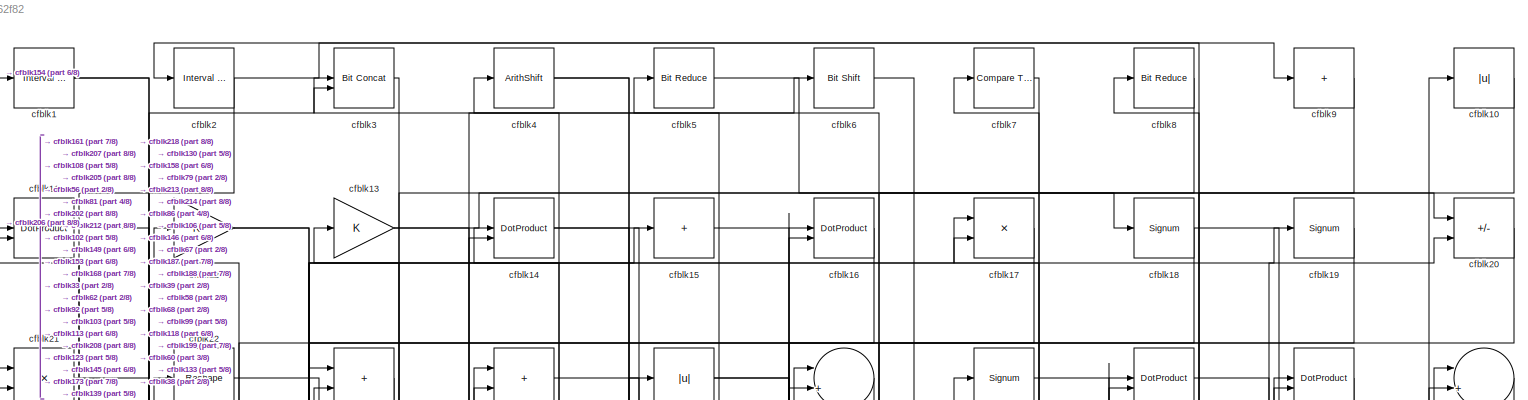
[diagram: root canvas - part 1/8, full width, top band]
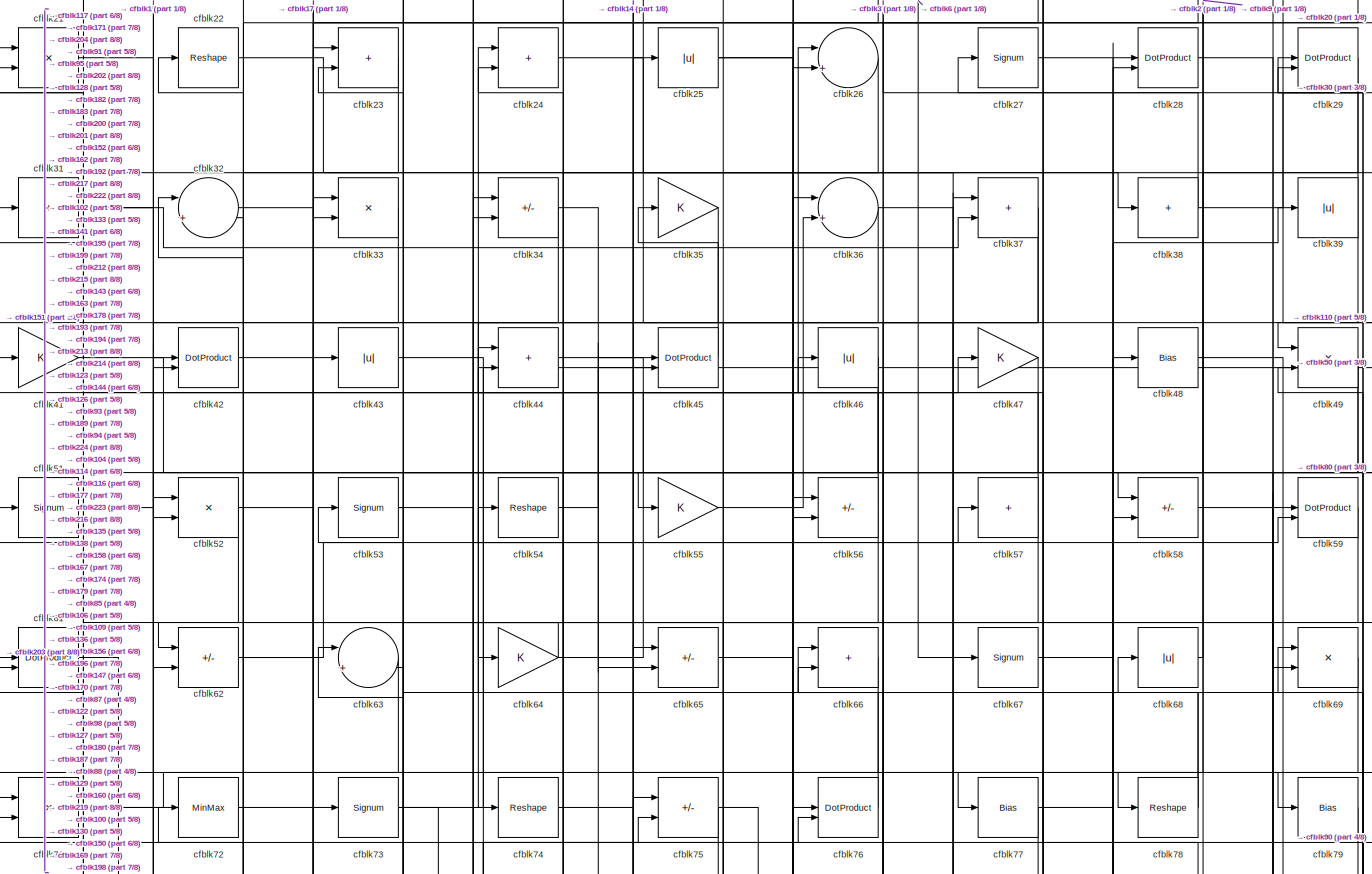
[diagram: root canvas - part 2/8, full width, top band]
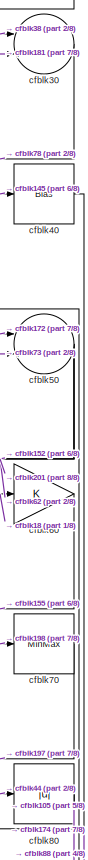
[diagram: root canvas - part 3/8, top right region]
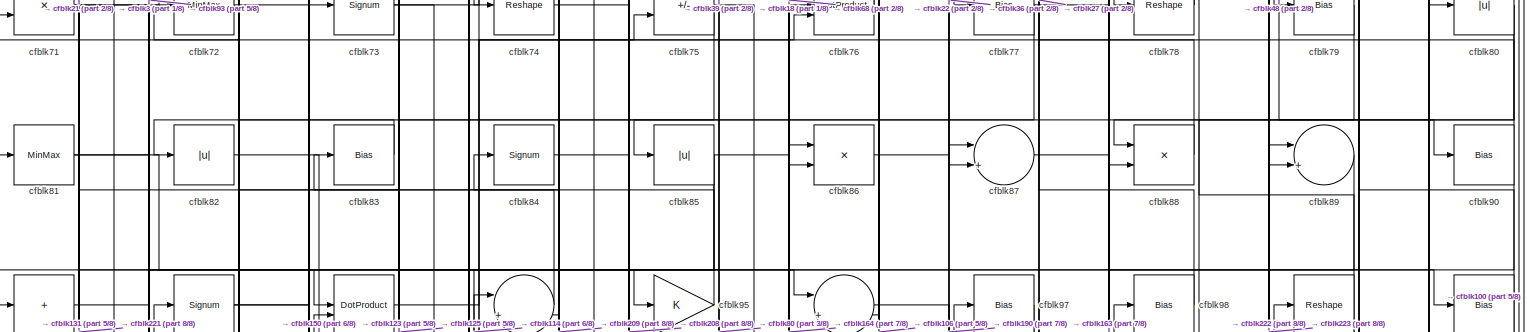
[diagram: root canvas - part 4/8, full width, middle band]
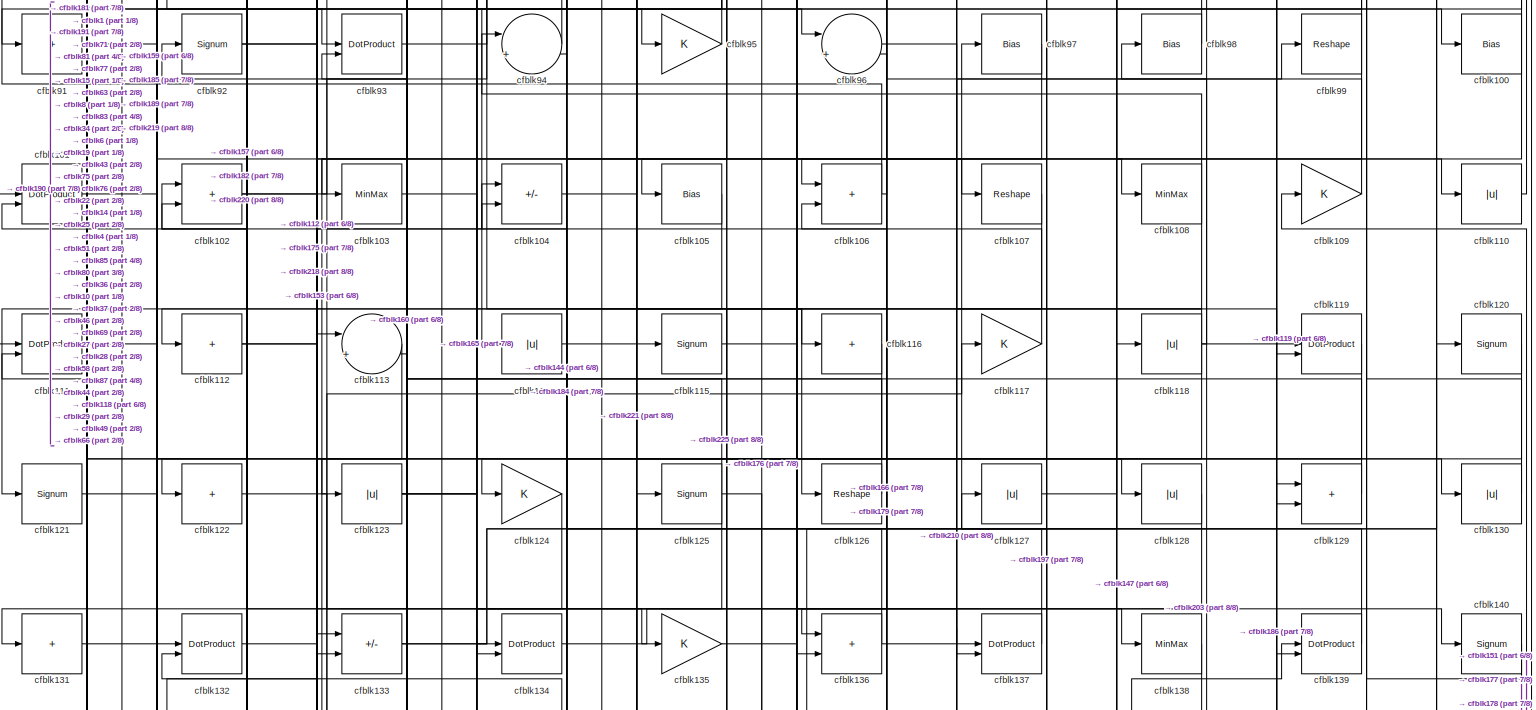
[diagram: root canvas - part 5/8, full width, middle band]
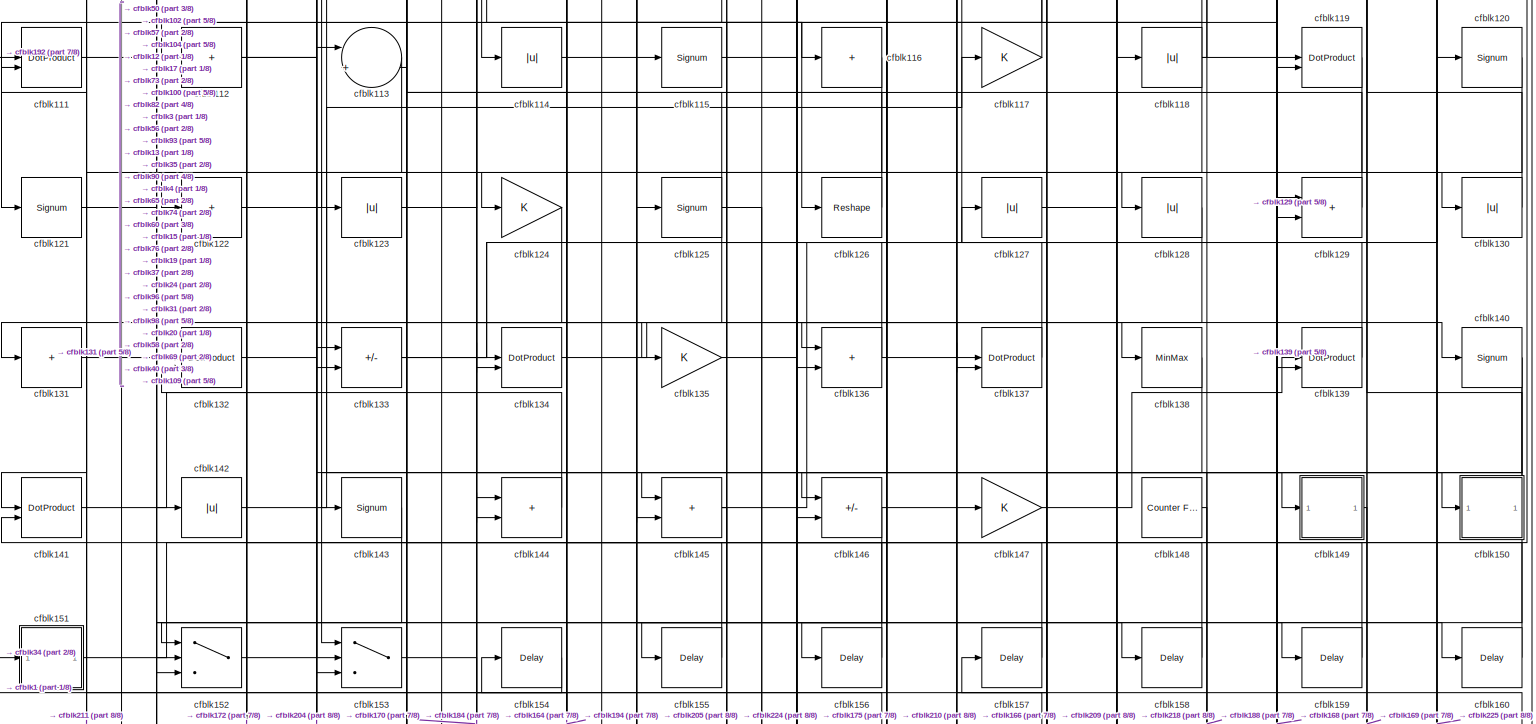
[diagram: root canvas - part 6/8, full width, middle band]
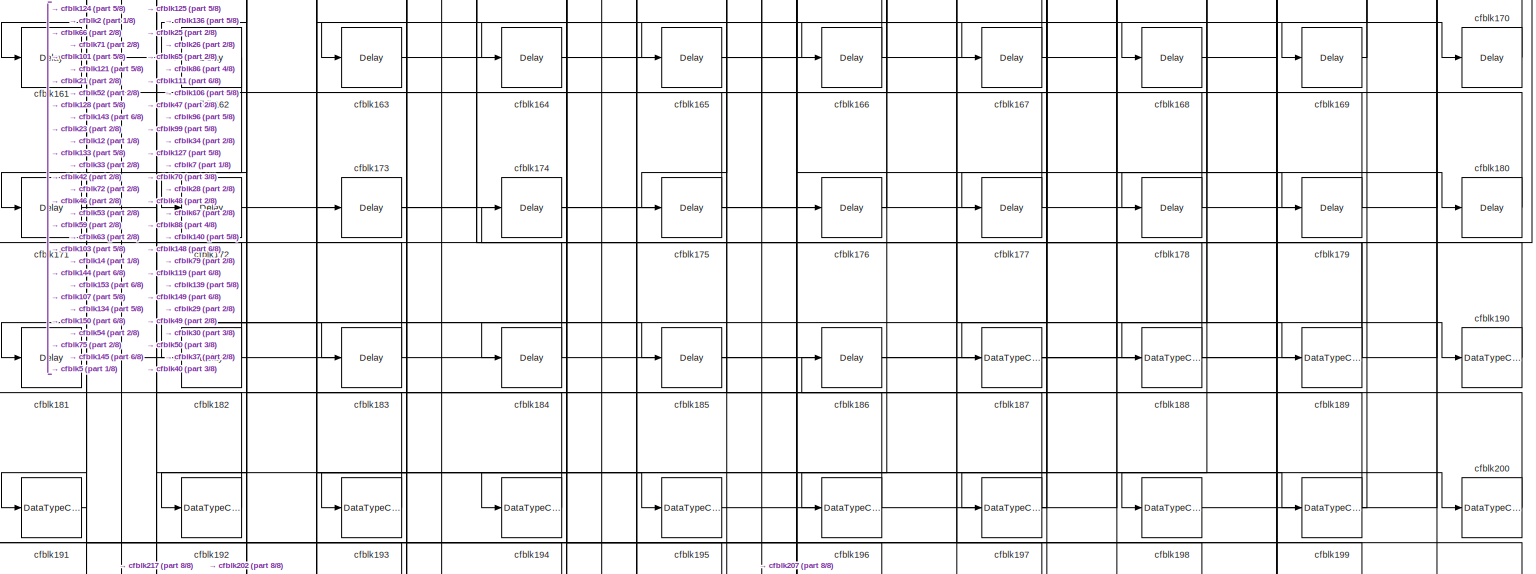
[diagram: root canvas - part 7/8, full width, bottom band]
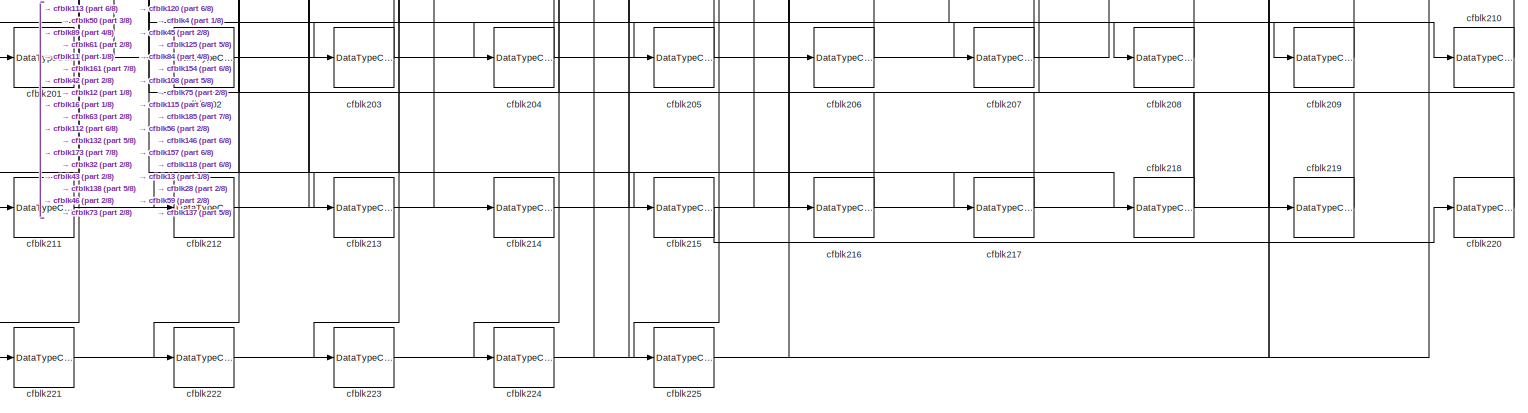
[diagram: root canvas - part 8/8, full width, bottom band]
MODEL slx_02483b762f82
KIND model
CONFIG AbsTol = auto
CONFIG EnableMultiTasking = off
CONFIG FixedStep = auto
CONFIG MaxStep = auto
CONFIG MinStep = auto
CONFIG RelTol = 1e-3
CONFIG SampleTimeConstraint = Unconstrained
CONFIG SolverName = VariableStepAuto
CONFIG StartTime = 0.0
CONFIG StopTime = 10.0
BLOCK [Reference] cfblk1  REF=hdlsllib/Logic and Bit
Operations/Interval Test
  SourceBlock = hdlsllib/Logic and Bit\nOperations/Interval Test
  SourceType = Interval Test
BLOCK [Abs] cfblk10
  SaturateOnIntegerOverflow = off
BLOCK [Bias] cfblk100
  Bias = 0.0
  SaturateOnIntegerOverflow = off
BLOCK [DotProduct] cfblk101
  OutDataTypeStr = Inherit: Inherit via internal rule
BLOCK [Sum] cfblk102
  IconShape = rectangular
BLOCK [MinMax] cfblk103
BLOCK [Sum] cfblk104
  IconShape = rectangular
  Inputs = +-
BLOCK [Bias] cfblk105
  Bias = 0.0
  SaturateOnIntegerOverflow = off
BLOCK [Sum] cfblk106
  IconShape = rectangular
BLOCK [Reshape] cfblk107
BLOCK [MinMax] cfblk108
BLOCK [Gain] cfblk109
BLOCK [DotProduct] cfblk11
  OutDataTypeStr = Inherit: Inherit via internal rule
BLOCK [Abs] cfblk110
  SaturateOnIntegerOverflow = off
BLOCK [DotProduct] cfblk111
  OutDataTypeStr = Inherit: Inherit via internal rule
BLOCK [Sum] cfblk112
  IconShape = rectangular
  Inputs = +
BLOCK [Sum] cfblk113
  Inputs = |++
BLOCK [Abs] cfblk114
  SaturateOnIntegerOverflow = off
BLOCK [Signum] cfblk115
BLOCK [Sum] cfblk116
  IconShape = rectangular
  Inputs = +
BLOCK [Gain] cfblk117
BLOCK [Abs] cfblk118
  SaturateOnIntegerOverflow = off
BLOCK [DotProduct] cfblk119
  OutDataTypeStr = Inherit: Inherit via internal rule
BLOCK [Gain] cfblk12
BLOCK [Signum] cfblk120
BLOCK [Signum] cfblk121
BLOCK [Sum] cfblk122
  IconShape = rectangular
  Inputs = +
BLOCK [Abs] cfblk123
  SaturateOnIntegerOverflow = off
BLOCK [Gain] cfblk124
BLOCK [Signum] cfblk125
BLOCK [Reshape] cfblk126
BLOCK [Abs] cfblk127
  SaturateOnIntegerOverflow = off
BLOCK [Abs] cfblk128
  SaturateOnIntegerOverflow = off
BLOCK [Sum] cfblk129
  IconShape = rectangular
BLOCK [Gain] cfblk13
BLOCK [Abs] cfblk130
  SaturateOnIntegerOverflow = off
BLOCK [Sum] cfblk131
  IconShape = rectangular
  Inputs = +
BLOCK [DotProduct] cfblk132
  OutDataTypeStr = Inherit: Inherit via internal rule
BLOCK [Sum] cfblk133
  IconShape = rectangular
  Inputs = +-
BLOCK [DotProduct] cfblk134
  OutDataTypeStr = Inherit: Inherit via internal rule
BLOCK [Gain] cfblk135
BLOCK [Sum] cfblk136
  IconShape = rectangular
BLOCK [DotProduct] cfblk137
  OutDataTypeStr = Inherit: Inherit via internal rule
BLOCK [MinMax] cfblk138
BLOCK [DotProduct] cfblk139
  OutDataTypeStr = Inherit: Inherit via internal rule
BLOCK [DotProduct] cfblk14
  OutDataTypeStr = Inherit: Inherit via internal rule
BLOCK [Signum] cfblk140
BLOCK [DotProduct] cfblk141
  OutDataTypeStr = Inherit: Inherit via internal rule
BLOCK [Abs] cfblk142
  SaturateOnIntegerOverflow = off
BLOCK [Signum] cfblk143
BLOCK [Sum] cfblk144
  IconShape = rectangular
BLOCK [Sum] cfblk145
  IconShape = rectangular
BLOCK [Sum] cfblk146
  IconShape = rectangular
  Inputs = +-
BLOCK [Gain] cfblk147
BLOCK [Reference] cfblk148  REF=hdlsllib/Sources/Counter
Free-Running
  SourceBlock = hdlsllib/Sources/Counter\nFree-Running
  SourceType = Counter Free-Running
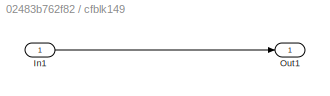
BLOCK [SubSystem] cfblk149
  LibrarySourceBlock = hdlsllib/Ports &\nSubsystems/Subsystem
BLOCK [Inport] cfblk149/In1
BLOCK [Outport] cfblk149/Out1
BLOCK [Sum] cfblk15
  IconShape = rectangular
  Inputs = +
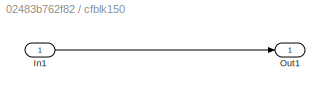
BLOCK [SubSystem] cfblk150
  LibrarySourceBlock = hdlsllib/Ports &\nSubsystems/Subsystem
BLOCK [Inport] cfblk150/In1
BLOCK [Outport] cfblk150/Out1
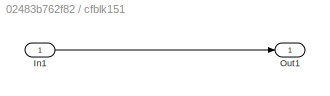
BLOCK [SubSystem] cfblk151
  LibrarySourceBlock = hdlsllib/Ports &\nSubsystems/Subsystem
BLOCK [Inport] cfblk151/In1
BLOCK [Outport] cfblk151/Out1
BLOCK [Switch] cfblk152
  InputSameDT = off
  SaturateOnIntegerOverflow = off
BLOCK [Switch] cfblk153
  InputSameDT = off
  SaturateOnIntegerOverflow = off
BLOCK [Delay] cfblk154
  InputPortMap = u0
  SampleTime = 1
BLOCK [Delay] cfblk155
  InputPortMap = u0
  SampleTime = 1
BLOCK [Delay] cfblk156
  InputPortMap = u0
  SampleTime = 1
BLOCK [Delay] cfblk157
  InputPortMap = u0
  SampleTime = 1
BLOCK [Delay] cfblk158
  InputPortMap = u0
  SampleTime = 1
BLOCK [Delay] cfblk159
  InputPortMap = u0
  SampleTime = 1
BLOCK [DotProduct] cfblk16
  OutDataTypeStr = Inherit: Inherit via internal rule
BLOCK [Delay] cfblk160
  InputPortMap = u0
  SampleTime = 1
BLOCK [Delay] cfblk161
  InputPortMap = u0
  SampleTime = 1
BLOCK [Delay] cfblk162
  InputPortMap = u0
  SampleTime = 1
BLOCK [Delay] cfblk163
  InputPortMap = u0
  SampleTime = 1
BLOCK [Delay] cfblk164
  InputPortMap = u0
  SampleTime = 1
BLOCK [Delay] cfblk165
  InputPortMap = u0
  SampleTime = 1
BLOCK [Delay] cfblk166
  InputPortMap = u0
  SampleTime = 1
BLOCK [Delay] cfblk167
  InputPortMap = u0
  SampleTime = 1
BLOCK [Delay] cfblk168
  InputPortMap = u0
  SampleTime = 1
BLOCK [Delay] cfblk169
  InputPortMap = u0
  SampleTime = 1
BLOCK [Product] cfblk17
  Inputs = */
  RndMeth = Zero
  SaturateOnIntegerOverflow = on
BLOCK [Delay] cfblk170
  InputPortMap = u0
  SampleTime = 1
BLOCK [Delay] cfblk171
  InputPortMap = u0
  SampleTime = 1
BLOCK [Delay] cfblk172
  InputPortMap = u0
  SampleTime = 1
BLOCK [Delay] cfblk173
  InputPortMap = u0
  SampleTime = 1
BLOCK [Delay] cfblk174
  InputPortMap = u0
  SampleTime = 1
BLOCK [Delay] cfblk175
  InputPortMap = u0
  SampleTime = 1
BLOCK [Delay] cfblk176
  InputPortMap = u0
  SampleTime = 1
BLOCK [Delay] cfblk177
  InputPortMap = u0
  SampleTime = 1
BLOCK [Delay] cfblk178
  InputPortMap = u0
  SampleTime = 1
BLOCK [Delay] cfblk179
  InputPortMap = u0
  SampleTime = 1
BLOCK [Signum] cfblk18
BLOCK [Delay] cfblk180
  InputPortMap = u0
  SampleTime = 1
BLOCK [Delay] cfblk181
  InputPortMap = u0
  SampleTime = 1
BLOCK [Delay] cfblk182
  InputPortMap = u0
  SampleTime = 1
BLOCK [Delay] cfblk183
  InputPortMap = u0
  SampleTime = 1
BLOCK [Delay] cfblk184
  InputPortMap = u0
  SampleTime = 1
BLOCK [Delay] cfblk185
  InputPortMap = u0
  SampleTime = 1
BLOCK [Delay] cfblk186
  InputPortMap = u0
  SampleTime = 1
BLOCK [DataTypeConversion] cfblk187
  OutDataTypeStr = uint8
  RndMeth = Floor
  SaturateOnIntegerOverflow = off
BLOCK [DataTypeConversion] cfblk188
  OutDataTypeStr = uint8
  RndMeth = Floor
  SaturateOnIntegerOverflow = off
BLOCK [DataTypeConversion] cfblk189
  RndMeth = Floor
  SaturateOnIntegerOverflow = off
BLOCK [Signum] cfblk19
BLOCK [DataTypeConversion] cfblk190
  OutDataTypeStr = uint8
  RndMeth = Floor
  SaturateOnIntegerOverflow = off
BLOCK [DataTypeConversion] cfblk191
  OutDataTypeStr = uint8
  RndMeth = Floor
  SaturateOnIntegerOverflow = off
BLOCK [DataTypeConversion] cfblk192
  OutDataTypeStr = uint8
  RndMeth = Floor
  SaturateOnIntegerOverflow = off
BLOCK [DataTypeConversion] cfblk193
  OutDataTypeStr = uint8
  RndMeth = Floor
  SaturateOnIntegerOverflow = off
BLOCK [DataTypeConversion] cfblk194
  OutDataTypeStr = uint8
  RndMeth = Floor
  SaturateOnIntegerOverflow = off
BLOCK [DataTypeConversion] cfblk195
  OutDataTypeStr = uint8
  RndMeth = Floor
  SaturateOnIntegerOverflow = off
BLOCK [DataTypeConversion] cfblk196
  OutDataTypeStr = uint8
  RndMeth = Floor
  SaturateOnIntegerOverflow = off
BLOCK [DataTypeConversion] cfblk197
  RndMeth = Floor
  SaturateOnIntegerOverflow = off
BLOCK [DataTypeConversion] cfblk198
  OutDataTypeStr = uint8
  RndMeth = Floor
  SaturateOnIntegerOverflow = off
BLOCK [DataTypeConversion] cfblk199
  RndMeth = Floor
  SaturateOnIntegerOverflow = off
BLOCK [Reference] cfblk2  REF=hdlsllib/Logic and Bit
Operations/Interval Test
  SourceBlock = hdlsllib/Logic and Bit\nOperations/Interval Test
  SourceType = Interval Test
BLOCK [Sum] cfblk20
  IconShape = rectangular
  Inputs = +-
BLOCK [DataTypeConversion] cfblk200
  OutDataTypeStr = uint8
  RndMeth = Floor
  SaturateOnIntegerOverflow = off
BLOCK [DataTypeConversion] cfblk201
  OutDataTypeStr = uint8
  RndMeth = Floor
  SaturateOnIntegerOverflow = off
BLOCK [DataTypeConversion] cfblk202
  RndMeth = Floor
  SaturateOnIntegerOverflow = off
BLOCK [DataTypeConversion] cfblk203
  OutDataTypeStr = uint8
  RndMeth = Floor
  SaturateOnIntegerOverflow = off
BLOCK [DataTypeConversion] cfblk204
  OutDataTypeStr = uint8
  RndMeth = Floor
  SaturateOnIntegerOverflow = off
BLOCK [DataTypeConversion] cfblk205
  RndMeth = Floor
  SaturateOnIntegerOverflow = off
BLOCK [DataTypeConversion] cfblk206
  OutDataTypeStr = uint8
  RndMeth = Floor
  SaturateOnIntegerOverflow = off
BLOCK [DataTypeConversion] cfblk207
  OutDataTypeStr = uint8
  RndMeth = Floor
  SaturateOnIntegerOverflow = off
BLOCK [DataTypeConversion] cfblk208
  OutDataTypeStr = uint8
  RndMeth = Floor
  SaturateOnIntegerOverflow = off
BLOCK [DataTypeConversion] cfblk209
  OutDataTypeStr = uint8
  RndMeth = Floor
  SaturateOnIntegerOverflow = off
BLOCK [Product] cfblk21
  Inputs = */
  RndMeth = Zero
  SaturateOnIntegerOverflow = on
BLOCK [DataTypeConversion] cfblk210
  OutDataTypeStr = uint8
  RndMeth = Floor
  SaturateOnIntegerOverflow = off
BLOCK [DataTypeConversion] cfblk211
  OutDataTypeStr = uint8
  RndMeth = Floor
  SaturateOnIntegerOverflow = off
BLOCK [DataTypeConversion] cfblk212
  RndMeth = Floor
  SaturateOnIntegerOverflow = off
BLOCK [DataTypeConversion] cfblk213
  OutDataTypeStr = uint8
  RndMeth = Floor
  SaturateOnIntegerOverflow = off
BLOCK [DataTypeConversion] cfblk214
  OutDataTypeStr = uint8
  RndMeth = Floor
  SaturateOnIntegerOverflow = off
BLOCK [DataTypeConversion] cfblk215
  OutDataTypeStr = uint8
  RndMeth = Floor
  SaturateOnIntegerOverflow = off
BLOCK [DataTypeConversion] cfblk216
  OutDataTypeStr = uint8
  RndMeth = Floor
  SaturateOnIntegerOverflow = off
BLOCK [DataTypeConversion] cfblk217
  OutDataTypeStr = uint8
  RndMeth = Floor
  SaturateOnIntegerOverflow = off
BLOCK [DataTypeConversion] cfblk218
  RndMeth = Floor
  SaturateOnIntegerOverflow = off
BLOCK [DataTypeConversion] cfblk219
  OutDataTypeStr = uint8
  RndMeth = Floor
  SaturateOnIntegerOverflow = off
BLOCK [Reshape] cfblk22
BLOCK [DataTypeConversion] cfblk220
  OutDataTypeStr = uint8
  RndMeth = Floor
  SaturateOnIntegerOverflow = off
BLOCK [DataTypeConversion] cfblk221
  OutDataTypeStr = uint8
  RndMeth = Floor
  SaturateOnIntegerOverflow = off
BLOCK [DataTypeConversion] cfblk222
  OutDataTypeStr = uint8
  RndMeth = Floor
  SaturateOnIntegerOverflow = off
BLOCK [DataTypeConversion] cfblk223
  OutDataTypeStr = uint8
  RndMeth = Floor
  SaturateOnIntegerOverflow = off
BLOCK [DataTypeConversion] cfblk224
  RndMeth = Floor
  SaturateOnIntegerOverflow = off
BLOCK [DataTypeConversion] cfblk225
  OutDataTypeStr = uint8
  RndMeth = Floor
  SaturateOnIntegerOverflow = off
BLOCK [Sum] cfblk23
  IconShape = rectangular
BLOCK [Sum] cfblk24
  IconShape = rectangular
BLOCK [Abs] cfblk25
  SaturateOnIntegerOverflow = off
BLOCK [Sum] cfblk26
  Inputs = |++
BLOCK [Signum] cfblk27
BLOCK [DotProduct] cfblk28
  OutDataTypeStr = Inherit: Inherit via internal rule
BLOCK [DotProduct] cfblk29
  OutDataTypeStr = Inherit: Inherit via internal rule
BLOCK [Reference] cfblk3  REF=hdlsllib/Logic and Bit
Operations/Bit Concat
  SourceBlock = hdlsllib/Logic and Bit\nOperations/Bit Concat
  SourceType = Bit Concat
BLOCK [Sum] cfblk30
  Inputs = |++
BLOCK [Sum] cfblk31
  IconShape = rectangular
  Inputs = +
BLOCK [Sum] cfblk32
  Inputs = |++
BLOCK [Product] cfblk33
  Inputs = */
  RndMeth = Zero
  SaturateOnIntegerOverflow = on
BLOCK [Sum] cfblk34
  IconShape = rectangular
  Inputs = +-
BLOCK [Gain] cfblk35
BLOCK [Sum] cfblk36
  Inputs = |++
BLOCK [Sum] cfblk37
  IconShape = rectangular
BLOCK [Sum] cfblk38
  IconShape = rectangular
  Inputs = +
BLOCK [Abs] cfblk39
  SaturateOnIntegerOverflow = off
BLOCK [ArithShift] cfblk4
  BitShiftNumber = 8
  InputPortMap = u0
BLOCK [Bias] cfblk40
  Bias = 0.0
  SaturateOnIntegerOverflow = off
BLOCK [Gain] cfblk41
BLOCK [DotProduct] cfblk42
  OutDataTypeStr = Inherit: Inherit via internal rule
BLOCK [Abs] cfblk43
  SaturateOnIntegerOverflow = off
BLOCK [Sum] cfblk44
  IconShape = rectangular
BLOCK [DotProduct] cfblk45
  OutDataTypeStr = Inherit: Inherit via internal rule
BLOCK [Abs] cfblk46
  SaturateOnIntegerOverflow = off
BLOCK [Gain] cfblk47
BLOCK [Bias] cfblk48
  Bias = 0.0
  SaturateOnIntegerOverflow = off
BLOCK [Product] cfblk49
  Inputs = */
  RndMeth = Zero
  SaturateOnIntegerOverflow = on
BLOCK [Reference] cfblk5  REF=hdlsllib/Logic and Bit
Operations/Bit Reduce
  SourceBlock = hdlsllib/Logic and Bit\nOperations/Bit Reduce
  SourceType = Bit Reduce
BLOCK [Sum] cfblk50
  Inputs = |++
BLOCK [Signum] cfblk51
BLOCK [Product] cfblk52
  Inputs = */
  RndMeth = Zero
  SaturateOnIntegerOverflow = on
BLOCK [Signum] cfblk53
BLOCK [Reshape] cfblk54
BLOCK [Gain] cfblk55
BLOCK [Sum] cfblk56
  IconShape = rectangular
  Inputs = +-
BLOCK [Sum] cfblk57
  IconShape = rectangular
  Inputs = +
BLOCK [Sum] cfblk58
  IconShape = rectangular
  Inputs = +-
BLOCK [DotProduct] cfblk59
  OutDataTypeStr = Inherit: Inherit via internal rule
BLOCK [Reference] cfblk6  REF=hdlsllib/Logic and Bit
Operations/Bit Shift
  SourceBlock = hdlsllib/Logic and Bit\nOperations/Bit Shift
  SourceType = Bit Shift
BLOCK [Gain] cfblk60
BLOCK [DotProduct] cfblk61
  OutDataTypeStr = Inherit: Inherit via internal rule
BLOCK [Sum] cfblk62
  IconShape = rectangular
  Inputs = +-
BLOCK [Sum] cfblk63
  Inputs = |++
BLOCK [Gain] cfblk64
BLOCK [Sum] cfblk65
  IconShape = rectangular
  Inputs = +-
BLOCK [Sum] cfblk66
  IconShape = rectangular
BLOCK [Signum] cfblk67
BLOCK [Abs] cfblk68
  SaturateOnIntegerOverflow = off
BLOCK [Product] cfblk69
  Inputs = */
  RndMeth = Zero
  SaturateOnIntegerOverflow = on
BLOCK [Reference] cfblk7  REF=hdlsllib/Logic and Bit
Operations/Compare
To Zero
  SourceBlock = hdlsllib/Logic and Bit\nOperations/Compare\nTo Zero
  SourceType = Compare To Zero
BLOCK [MinMax] cfblk70
BLOCK [Product] cfblk71
  Inputs = */
  RndMeth = Zero
  SaturateOnIntegerOverflow = on
BLOCK [MinMax] cfblk72
BLOCK [Signum] cfblk73
BLOCK [Reshape] cfblk74
BLOCK [Sum] cfblk75
  IconShape = rectangular
  Inputs = +-
BLOCK [DotProduct] cfblk76
  OutDataTypeStr = Inherit: Inherit via internal rule
BLOCK [Bias] cfblk77
  Bias = 0.0
  SaturateOnIntegerOverflow = off
BLOCK [Reshape] cfblk78
BLOCK [Bias] cfblk79
  Bias = 0.0
  SaturateOnIntegerOverflow = off
BLOCK [Reference] cfblk8  REF=hdlsllib/Logic and Bit
Operations/Bit Reduce
  SourceBlock = hdlsllib/Logic and Bit\nOperations/Bit Reduce
  SourceType = Bit Reduce
BLOCK [Abs] cfblk80
  SaturateOnIntegerOverflow = off
BLOCK [MinMax] cfblk81
BLOCK [Abs] cfblk82
  SaturateOnIntegerOverflow = off
BLOCK [Bias] cfblk83
  Bias = 0.0
  SaturateOnIntegerOverflow = off
BLOCK [Signum] cfblk84
BLOCK [Abs] cfblk85
  SaturateOnIntegerOverflow = off
BLOCK [Product] cfblk86
  Inputs = */
  RndMeth = Zero
  SaturateOnIntegerOverflow = on
BLOCK [Sum] cfblk87
  Inputs = |++
BLOCK [Product] cfblk88
  Inputs = */
  RndMeth = Zero
  SaturateOnIntegerOverflow = on
BLOCK [Sum] cfblk89
  Inputs = |++
BLOCK [Sum] cfblk9
  IconShape = rectangular
  Inputs = +
BLOCK [Bias] cfblk90
  Bias = 0.0
  SaturateOnIntegerOverflow = off
BLOCK [Sum] cfblk91
  IconShape = rectangular
  Inputs = +
BLOCK [Signum] cfblk92
BLOCK [DotProduct] cfblk93
  OutDataTypeStr = Inherit: Inherit via internal rule
BLOCK [Sum] cfblk94
  Inputs = |++
BLOCK [Gain] cfblk95
BLOCK [Sum] cfblk96
  Inputs = |++
BLOCK [Bias] cfblk97
  Bias = 0.0
  SaturateOnIntegerOverflow = off
BLOCK [Bias] cfblk98
  Bias = 0.0
  SaturateOnIntegerOverflow = off
BLOCK [Reshape] cfblk99
NET cfblk100:1 -> cfblk153:1, cfblk66:2
LINE cfblk101:1 -> cfblk189:1
NET cfblk102:1 -> cfblk19:1, cfblk76:2
LINE cfblk103:1 -> cfblk165:1
LINE cfblk104:1 -> cfblk25:1
LINE cfblk105:1 -> cfblk121:1
NET cfblk106:1 -> cfblk66:1, cfblk81:1
LINE cfblk107:1 -> cfblk184:1
NET cfblk108:1 -> cfblk225:1, cfblk94:1
LINE cfblk109:1 -> cfblk46:1
LINE cfblk10:1 -> cfblk106:1
LINE cfblk110:1 -> cfblk49:1
LINE cfblk111:1 -> cfblk142:1
NET cfblk112:1 -> cfblk104:1, cfblk204:1
LINE cfblk113:1 -> cfblk211:1
LINE cfblk114:1 -> cfblk65:1
LINE cfblk115:1 -> cfblk210:1
LINE cfblk116:1 -> cfblk153:2
LINE cfblk117:1 -> cfblk31:1
NET cfblk118:1 -> cfblk112:1, cfblk141:1, cfblk20:2, cfblk98:1
LINE cfblk119:1 -> cfblk194:1
LINE cfblk11:1 -> cfblk205:1
LINE cfblk120:1 -> cfblk224:1
LINE cfblk121:1 -> cfblk185:1
LINE cfblk122:1 -> cfblk137:2
NET cfblk123:1 -> cfblk135:1, cfblk34:2, cfblk6:1
LINE cfblk124:1 -> cfblk181:1
NET cfblk125:1 -> cfblk134:2, cfblk176:1, cfblk83:1
LINE cfblk126:1 -> cfblk63:1
LINE cfblk127:1 -> cfblk28:2
LINE cfblk128:1 -> cfblk182:1
LINE cfblk129:1 -> cfblk92:1
NET cfblk12:1 -> cfblk149:1, cfblk168:1
LINE cfblk130:1 -> cfblk29:1
LINE cfblk131:1 -> cfblk159:1
LINE cfblk132:1 -> cfblk218:1
NET cfblk133:1 -> cfblk10:1, cfblk58:2
LINE cfblk134:1 -> cfblk140:1
LINE cfblk135:1 -> cfblk36:1
NET cfblk136:1 -> cfblk104:2, cfblk99:1
LINE cfblk137:1 -> cfblk97:1
LINE cfblk138:1 -> cfblk203:1
LINE cfblk139:1 -> cfblk14:1
NET cfblk13:1 -> cfblk145:2, cfblk20:1
NET cfblk140:1 -> cfblk177:1, cfblk178:1
LINE cfblk141:1 -> cfblk73:1
LINE cfblk142:1 -> cfblk117:1
LINE cfblk143:1 -> cfblk172:1
LINE cfblk144:1 -> cfblk102:1
NET cfblk145:1 -> cfblk175:1, cfblk40:1
NET cfblk146:1 -> cfblk152:3, cfblk209:1
LINE cfblk147:1 -> cfblk139:1
LINE cfblk148:1 -> cfblk188:1
LINE cfblk149/In1:1 -> cfblk149/Out1:1
LINE cfblk149:1 -> cfblk169:1
NET cfblk14:1 -> cfblk38:1, cfblk79:1
LINE cfblk150/In1:1 -> cfblk150/Out1:1
NET cfblk150:1 -> cfblk145:1, cfblk164:1, cfblk69:1
LINE cfblk151/In1:1 -> cfblk151/Out1:1
LINE cfblk151:1 -> cfblk109:1
LINE cfblk152:1 -> cfblk113:1
LINE cfblk153:1 -> cfblk170:1
LINE cfblk154:1 -> cfblk1:1
LINE cfblk155:1 -> cfblk141:2
LINE cfblk156:1 -> cfblk24:2
LINE cfblk157:1 -> cfblk102:2
LINE cfblk158:1 -> cfblk76:1
LINE cfblk159:1 -> cfblk129:1
LINE cfblk15:1 -> cfblk146:2
LINE cfblk160:1 -> cfblk93:2
LINE cfblk161:1 -> cfblk217:1
LINE cfblk162:1 -> cfblk191:1
LINE cfblk163:1 -> cfblk88:2
LINE cfblk164:1 -> cfblk86:1
LINE cfblk165:1 -> cfblk136:2
LINE cfblk166:1 -> cfblk111:2
LINE cfblk167:1 -> cfblk34:1
LINE cfblk168:1 -> cfblk119:1
LINE cfblk169:1 -> cfblk49:2
LINE cfblk16:1 -> cfblk212:1
LINE cfblk170:1 -> cfblk37:1
LINE cfblk171:1 -> cfblk200:1
LINE cfblk172:1 -> cfblk50:1
LINE cfblk173:1 -> cfblk14:2
LINE cfblk174:1 -> cfblk26:2
LINE cfblk175:1 -> cfblk133:1
LINE cfblk176:1 -> cfblk106:2
LINE cfblk177:1 -> cfblk75:1
LINE cfblk178:1 -> cfblk63:2
LINE cfblk179:1 -> cfblk96:2
LINE cfblk17:1 -> cfblk153:3
LINE cfblk180:1 -> cfblk71:2
LINE cfblk181:1 -> cfblk30:2
LINE cfblk182:1 -> cfblk52:1
LINE cfblk183:1 -> cfblk33:1
LINE cfblk184:1 -> cfblk144:1
LINE cfblk185:1 -> cfblk207:1
LINE cfblk186:1 -> cfblk139:2
LINE cfblk187:1 -> cfblk48:1
LINE cfblk188:1 -> cfblk7:1
NET cfblk189:1 -> cfblk134:1, cfblk54:1
NET cfblk18:1 -> cfblk60:1, cfblk86:2
LINE cfblk190:1 -> cfblk101:1
LINE cfblk191:1 -> cfblk101:2
LINE cfblk192:1 -> cfblk111:1
LINE cfblk193:1 -> cfblk23:1
LINE cfblk194:1 -> cfblk23:2
LINE cfblk195:1 -> cfblk28:1
LINE cfblk196:1 -> cfblk72:1
NET cfblk197:1 -> cfblk127:1, cfblk186:1
LINE cfblk198:1 -> cfblk70:1
NET cfblk199:1 -> cfblk29:2, cfblk5:1
LINE cfblk19:1 -> cfblk146:1
NET cfblk1:1 -> cfblk108:1, cfblk56:2
LINE cfblk200:1 -> cfblk42:1
LINE cfblk201:1 -> cfblk42:2
NET cfblk202:1 -> cfblk12:1, cfblk173:1, cfblk56:1
LINE cfblk203:1 -> cfblk61:1
LINE cfblk204:1 -> cfblk61:2
NET cfblk205:1 -> cfblk118:1, cfblk154:1
LINE cfblk206:1 -> cfblk11:1
LINE cfblk207:1 -> cfblk11:2
LINE cfblk208:1 -> cfblk13:1
LINE cfblk209:1 -> cfblk84:1
LINE cfblk20:1 -> cfblk33:2
LINE cfblk210:1 -> cfblk137:1
LINE cfblk211:1 -> cfblk115:1
NET cfblk212:1 -> cfblk43:1, cfblk59:1
LINE cfblk213:1 -> cfblk16:1
LINE cfblk214:1 -> cfblk16:2
LINE cfblk215:1 -> cfblk220:1
LINE cfblk216:1 -> cfblk32:1
LINE cfblk217:1 -> cfblk32:2
NET cfblk218:1 -> cfblk157:1, cfblk4:1
LINE cfblk219:1 -> cfblk132:1
LINE cfblk21:1 -> cfblk183:1
LINE cfblk220:1 -> cfblk132:2
LINE cfblk221:1 -> cfblk125:1
LINE cfblk222:1 -> cfblk89:1
LINE cfblk223:1 -> cfblk89:2
NET cfblk224:1 -> cfblk206:1, cfblk45:2
LINE cfblk225:1 -> cfblk120:1
LINE cfblk22:1 -> cfblk87:1
LINE cfblk23:1 -> cfblk192:1
LINE cfblk24:1 -> cfblk147:1
NET cfblk25:1 -> cfblk138:1, cfblk167:1
LINE cfblk26:1 -> cfblk71:1
LINE cfblk27:1 -> cfblk110:1
LINE cfblk28:1 -> cfblk219:1
LINE cfblk29:1 -> cfblk64:1
NET cfblk2:1 -> cfblk161:1, cfblk9:1
LINE cfblk30:1 -> cfblk78:1
NET cfblk31:1 -> cfblk37:2, cfblk95:1
LINE cfblk32:1 -> cfblk215:1
LINE cfblk33:1 -> cfblk52:2
NET cfblk34:1 -> cfblk151:1, cfblk65:2
LINE cfblk35:1 -> cfblk144:2
NET cfblk36:1 -> cfblk74:1, cfblk87:2
NET cfblk37:1 -> cfblk133:2, cfblk156:1
NET cfblk38:1 -> cfblk30:1, cfblk3:1
NET cfblk39:1 -> cfblk17:2, cfblk85:1
LINE cfblk3:1 -> cfblk113:2
LINE cfblk40:1 -> cfblk174:1
LINE cfblk41:1 -> cfblk55:1
LINE cfblk42:1 -> cfblk199:1
LINE cfblk43:1 -> cfblk126:1
LINE cfblk44:1 -> cfblk80:1
LINE cfblk45:1 -> cfblk35:1
NET cfblk46:1 -> cfblk162:1, cfblk213:1
LINE cfblk47:1 -> cfblk196:1
LINE cfblk48:1 -> cfblk90:1
NET cfblk49:1 -> cfblk129:2, cfblk94:2
NET cfblk4:1 -> cfblk130:1, cfblk158:1
NET cfblk50:1 -> cfblk152:2, cfblk201:1, cfblk62:2
LINE cfblk51:1 -> cfblk47:1
NET cfblk52:1 -> cfblk69:2, cfblk91:1
NET cfblk53:1 -> cfblk193:1, cfblk59:2
LINE cfblk54:1 -> cfblk45:1
LINE cfblk55:1 -> cfblk36:2
NET cfblk56:1 -> cfblk143:1, cfblk41:1
NET cfblk57:1 -> cfblk152:1, cfblk21:2
LINE cfblk58:1 -> cfblk160:1
LINE cfblk59:1 -> cfblk163:1
LINE cfblk5:1 -> cfblk18:1
LINE cfblk60:1 -> cfblk155:1
LINE cfblk61:1 -> cfblk202:1
NET cfblk62:1 -> cfblk17:1, cfblk57:1
LINE cfblk63:1 -> cfblk222:1
NET cfblk64:1 -> cfblk26:1, cfblk62:1
LINE cfblk65:1 -> cfblk179:1
LINE cfblk66:1 -> cfblk171:1
LINE cfblk67:1 -> cfblk180:1
LINE cfblk68:1 -> cfblk2:1
LINE cfblk69:1 -> cfblk136:1
LINE cfblk6:1 -> cfblk67:1
LINE cfblk70:1 -> cfblk197:1
NET cfblk71:1 -> cfblk128:1, cfblk77:1
LINE cfblk72:1 -> cfblk195:1
NET cfblk73:1 -> cfblk214:1, cfblk50:2
LINE cfblk74:1 -> cfblk116:1
NET cfblk75:1 -> cfblk216:1, cfblk223:1
LINE cfblk76:1 -> cfblk24:1
NET cfblk77:1 -> cfblk122:1, cfblk39:1
NET cfblk78:1 -> cfblk44:2, cfblk53:1
LINE cfblk79:1 -> cfblk198:1
LINE cfblk7:1 -> cfblk187:1
NET cfblk80:1 -> cfblk105:1, cfblk88:1
NET cfblk81:1 -> cfblk3:2, cfblk93:1
LINE cfblk82:1 -> cfblk150:1
LINE cfblk83:1 -> cfblk82:1
LINE cfblk84:1 -> cfblk208:1
NET cfblk85:1 -> cfblk123:1, cfblk131:1, cfblk68:1
LINE cfblk86:1 -> cfblk190:1
LINE cfblk87:1 -> cfblk100:1
LINE cfblk88:1 -> cfblk27:1
LINE cfblk89:1 -> cfblk221:1
LINE cfblk8:1 -> cfblk103:1
NET cfblk90:1 -> cfblk114:1, cfblk21:1
LINE cfblk91:1 -> cfblk96:1
NET cfblk92:1 -> cfblk107:1, cfblk15:1
LINE cfblk93:1 -> cfblk75:2
LINE cfblk94:1 -> cfblk22:1
LINE cfblk95:1 -> cfblk51:1
LINE cfblk96:1 -> cfblk119:2
LINE cfblk97:1 -> cfblk124:1
LINE cfblk98:1 -> cfblk44:1
NET cfblk99:1 -> cfblk166:1, cfblk8:1
LINE cfblk9:1 -> cfblk58:1
note: NET lines group one-source signal fan-out (src -> all destinations, sorted); 1:1 wires keep LINE
